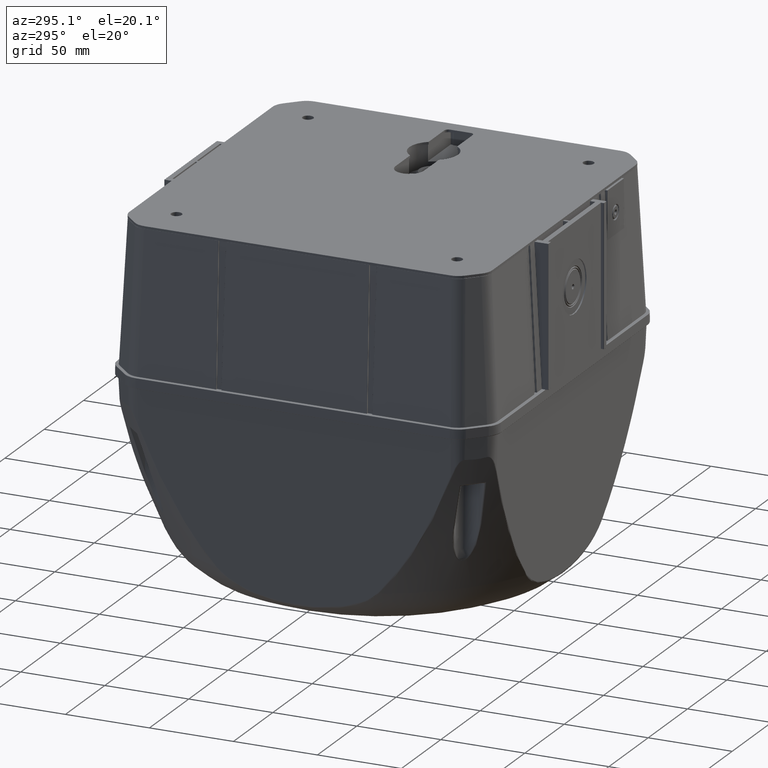
[diagram: clean part render]
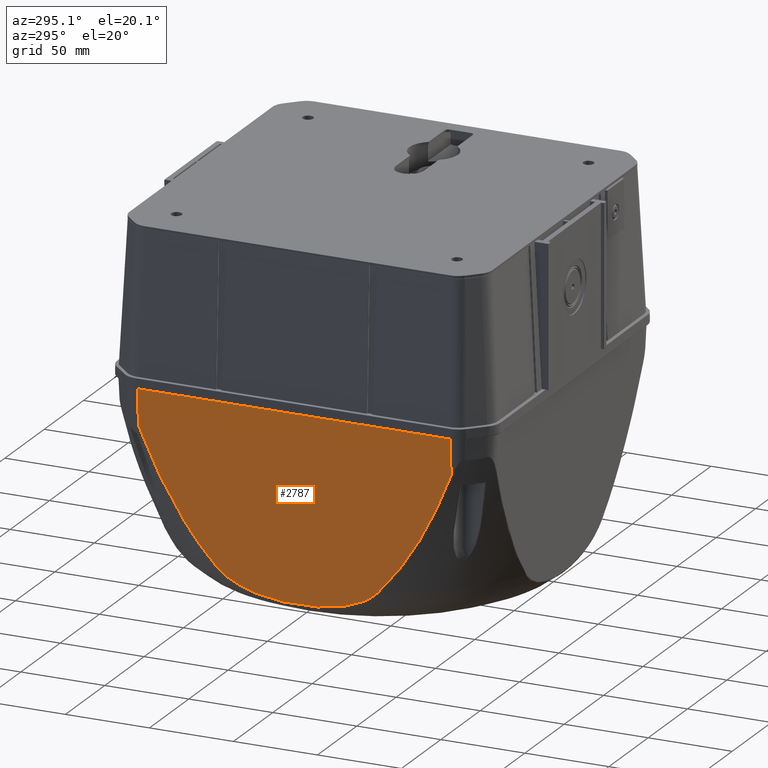
[diagram: same view with one face highlighted and labeled with its STEP entity id]
A machine part, auxiliary view. The second image highlights one B-rep face of the part: STEP entity #2787.
In plain terms, the highlighted planar face has unit normal (-0.999, 0, -0.0436).
Its self-contained STEP definition (entity closure, byte-faithful):
#1468=FACE_OUTER_BOUND('',#4855,.T.);
#2787=ADVANCED_FACE('',(#1468),#4229,.T.);
#4229=PLANE('',#21496);
#4855=EDGE_LOOP('',(#9309,#9310,#9311,#9312,#9313,#9314));
#6463=LINE('',#31028,#7690);
#6464=LINE('',#31031,#7691);
#6465=LINE('',#31033,#7692);
#7690=VECTOR('',#24229,1.);
#7691=VECTOR('',#24230,1.);
#7692=VECTOR('',#24231,1.);
#8903=B_SPLINE_CURVE_WITH_KNOTS('',3,(#31035,#31036,#31037,#31038,#31039,
#31040,#31041,#31042,#31043,#31044,#31045,#31046,#31047,#31048,#31049,#31050),
 .UNSPECIFIED.,.F.,.F.,(4,2,2,2,2,2,2,4),(0.,0.250000000000002,0.500000000000003,
0.625000000000003,0.750000000000003,0.812500000000003,0.875000000000002,
1.),.UNSPECIFIED.);
#8904=B_SPLINE_CURVE_WITH_KNOTS('',3,(#31052,#31053,#31054,#31055,#31056,
#31057,#31058,#31059,#31060,#31061,#31062,#31063,#31064,#31065,#31066,#31067,
#31068,#31069,#31070,#31071,#31072,#31073,#31074,#31075,#31076,#31077,#31078,
#31079,#31080,#31081,#31082,#31083,#31084,#31085,#31086,#31087,#31088,#31089,
#31090,#31091),.UNSPECIFIED.,.F.,.F.,(4,2,2,2,2,2,2,2,2,2,2,2,2,2,2,2,2,
2,2,4),(0.,0.0625000000000023,0.125000000000005,0.156250000000006,0.187500000000007,
0.250000000000008,0.312500000000007,0.343750000000006,0.375000000000006,
0.437500000000005,0.500000000000005,0.562500000000004,0.625000000000003,
0.687500000000003,0.750000000000002,0.812500000000001,0.875000000000001,
0.90625,0.9375,1.),.UNSPECIFIED.);
#8905=B_SPLINE_CURVE_WITH_KNOTS('',3,(#31093,#31094,#31095,#31096,#31097,
#31098,#31099,#31100,#31101,#31102,#31103,#31104,#31105,#31106,#31107,#31108),
 .UNSPECIFIED.,.F.,.F.,(4,2,2,2,2,2,2,4),(0.,0.125,0.25,0.375,0.5,0.625,
0.75,1.),.UNSPECIFIED.);
#9309=ORIENTED_EDGE('',*,*,#17258,.T.);
#9310=ORIENTED_EDGE('',*,*,#17259,.T.);
#9311=ORIENTED_EDGE('',*,*,#17260,.T.);
#9312=ORIENTED_EDGE('',*,*,#17261,.T.);
#9313=ORIENTED_EDGE('',*,*,#17262,.T.);
#9314=ORIENTED_EDGE('',*,*,#17263,.T.);
#15467=VERTEX_POINT('',#31029);
#15468=VERTEX_POINT('',#31030);
#15469=VERTEX_POINT('',#31032);
#15470=VERTEX_POINT('',#31034);
#15471=VERTEX_POINT('',#31051);
#15472=VERTEX_POINT('',#31092);
#17258=EDGE_CURVE('',#15467,#15468,#6463,.T.);
#17259=EDGE_CURVE('',#15468,#15469,#6464,.T.);
#17260=EDGE_CURVE('',#15469,#15470,#6465,.T.);
#17261=EDGE_CURVE('',#15470,#15471,#8903,.T.);
#17262=EDGE_CURVE('',#15471,#15472,#8904,.T.);
#17263=EDGE_CURVE('',#15472,#15467,#8905,.T.);
#21496=AXIS2_PLACEMENT_3D('',#31109,#24232,#24233);
#24229=DIRECTION('',(0.0180647935043676,0.0436122694797137,-0.998885195198364));
#24230=DIRECTION('',(-1.,0.,0.));
#24231=DIRECTION('',(0.0180647935043676,-0.0436122694797137,0.998885195198364));
#24232=DIRECTION('',(0.,0.999048221581858,0.043619387365336));
#24233=DIRECTION('',(0.,-0.043619387365336,0.999048221581858));
#31028=CARTESIAN_POINT('',(-135.036842783851,112.503260261641,89.1253277317557));
#31029=CARTESIAN_POINT('',(-135.452721086798,111.49924122237,112.121144413379));
#31030=CARTESIAN_POINT('',(-135.027617796032,112.546923152946,88.1251932025113));
#31031=CARTESIAN_POINT('',(-228.4,112.546929202835,88.1251445408933));
#31032=CARTESIAN_POINT('',(-321.772382109689,112.54692292548,88.1251984123266));
#31033=CARTESIAN_POINT('',(-321.539147723489,111.962453506361,101.51183886169));
#31034=CARTESIAN_POINT('',(-321.347278913202,111.49924122237,112.121144413379));
#31035=CARTESIAN_POINT('',(-321.347278913202,111.49924122237,112.121144413379));
#31036=CARTESIAN_POINT('',(-318.659399345371,111.199000147905,118.997795590927));
#31037=CARTESIAN_POINT('',(-315.756987159626,110.90398885532,125.754665070424));
#31038=CARTESIAN_POINT('',(-309.472955443789,110.325648176197,139.000844392184));
#31039=CARTESIAN_POINT('',(-306.092300042992,110.042295286538,145.490692544403));
#31040=CARTESIAN_POINT('',(-300.592352654686,109.627723054927,154.985957740127));
#31041=CARTESIAN_POINT('',(-298.687130937553,109.491285201999,158.110898335516));
#31042=CARTESIAN_POINT('',(-294.713439350731,109.222389087865,164.269631890532));
#31043=CARTESIAN_POINT('',(-292.645104568955,109.089927533544,167.303500274864));
#31044=CARTESIAN_POINT('',(-289.399247745086,108.894729838752,171.774262511988));
#31045=CARTESIAN_POINT('',(-288.293323995327,108.830248306574,173.251132407195));
#31046=CARTESIAN_POINT('',(-286.028777736935,108.702569909402,176.175448481606));
#31047=CARTESIAN_POINT('',(-284.86889418166,108.639306510832,177.624418530258));
#31048=CARTESIAN_POINT('',(-281.310540597409,108.452139014911,181.911258975125));
#31049=CARTESIAN_POINT('',(-278.840433549818,108.33115470018,184.682255354757));
#31050=CARTESIAN_POINT('',(-276.250399450777,108.214819399235,187.346771812602));
#31051=CARTESIAN_POINT('',(-276.250399450777,108.214819399235,187.346771812602));
#31052=CARTESIAN_POINT('',(-276.250399450777,108.214819399235,187.346771812602));
#31053=CARTESIAN_POINT('',(-274.73728903646,108.146855755252,188.903395180218));
#31054=CARTESIAN_POINT('',(-273.082538720935,108.088096355642,190.249206692653));
#31055=CARTESIAN_POINT('',(-269.575814533309,107.983393816497,192.647289101548));
#31056=CARTESIAN_POINT('',(-267.722447476967,107.937541210831,193.697486431506));
#31057=CARTESIAN_POINT('',(-264.825190863202,107.876378750283,195.098337088271));
#31058=CARTESIAN_POINT('',(-263.837751966743,107.857248089191,195.536501264701));
#31059=CARTESIAN_POINT('',(-261.853383865462,107.821747852733,196.349590357445));
#31060=CARTESIAN_POINT('',(-260.853376491378,107.805307572217,196.726134687937));
#31061=CARTESIAN_POINT('',(-257.832928485737,107.75940658063,197.777440237679));
#31062=CARTESIAN_POINT('',(-255.7922109871,107.733340770127,198.374445450271));
#31063=CARTESIAN_POINT('',(-251.667705567194,107.688420312545,199.403293079061));
#31064=CARTESIAN_POINT('',(-249.583846989083,107.669577495348,199.834864546411));
#31065=CARTESIAN_POINT('',(-246.430854977367,107.645867985299,200.377901605842));
#31066=CARTESIAN_POINT('',(-245.375297817331,107.638728253981,200.541428338038));
#31067=CARTESIAN_POINT('',(-243.255662743428,107.625875397925,200.83580713977));
#31068=CARTESIAN_POINT('',(-242.190491854923,107.620158951289,200.966735293285));
#31069=CARTESIAN_POINT('',(-239.001515502386,107.605114318098,201.311314044664));
#31070=CARTESIAN_POINT('',(-236.878694152298,107.597838125312,201.477966258304));
#31071=CARTESIAN_POINT('',(-232.638695886814,107.588199704369,201.698722391843));
#31072=CARTESIAN_POINT('',(-230.521521765029,107.585839908289,201.752770608008));
#31073=CARTESIAN_POINT('',(-226.292582588802,107.585829373285,201.75301189926));
#31074=CARTESIAN_POINT('',(-224.180818046844,107.588179080524,201.69919475556));
#31075=CARTESIAN_POINT('',(-219.962850501105,107.597720291099,201.48066510549));
#31076=CARTESIAN_POINT('',(-217.856645978039,107.604910471768,201.315982893211));
#31077=CARTESIAN_POINT('',(-213.650353784265,107.624616077838,200.86465031178));
#31078=CARTESIAN_POINT('',(-211.55026159016,107.637127565235,200.578090137795));
#31079=CARTESIAN_POINT('',(-207.357237543288,107.668384231436,199.862194783286));
#31080=CARTESIAN_POINT('',(-205.264294931129,107.687120043268,199.433074141736));
#31081=CARTESIAN_POINT('',(-201.087314524816,107.732344074934,198.397273523296));
#31082=CARTESIAN_POINT('',(-199.029358376775,107.758555125415,197.796941768303));
#31083=CARTESIAN_POINT('',(-194.990922061397,107.819738659974,196.395608437342));
#31084=CARTESIAN_POINT('',(-193.009835166599,107.854693881259,195.595002244336));
#31085=CARTESIAN_POINT('',(-190.112399167185,107.915616953941,194.199634471144));
#31086=CARTESIAN_POINT('',(-189.157142385065,107.937396548696,193.700799739134));
#31087=CARTESIAN_POINT('',(-187.284244509745,107.984092818594,192.63127932141));
#31088=CARTESIAN_POINT('',(-186.372270341744,108.008861736435,192.063977834275));
#31089=CARTESIAN_POINT('',(-183.719242599742,108.087980607149,190.251857768996));
#31090=CARTESIAN_POINT('',(-182.059007064187,108.147022121496,188.89958476676));
#31091=CARTESIAN_POINT('',(-180.549600549223,108.214819399235,187.346771812603));
#31092=CARTESIAN_POINT('',(-180.549600549223,108.214819399235,187.346771812603));
#31093=CARTESIAN_POINT('',(-180.549600549223,108.214819399235,187.346771812603));
#31094=CARTESIAN_POINT('',(-177.960481925194,108.331113580234,184.683197156349));
#31095=CARTESIAN_POINT('',(-175.505543412759,108.45139334092,181.928337717383));
#31096=CARTESIAN_POINT('',(-170.808276658792,108.698268069268,176.273976819475));
#31097=CARTESIAN_POINT('',(-168.566336607575,108.824874567427,173.374211268722));
#31098=CARTESIAN_POINT('',(-164.260176867563,109.083366428534,167.453774285751));
#31099=CARTESIAN_POINT('',(-162.19615103626,109.215257549671,164.432970969315));
#31100=CARTESIAN_POINT('',(-158.22220726192,109.483617290515,158.286522382391));
#31101=CARTESIAN_POINT('',(-156.312395284165,109.620089057731,155.160805022101));
#31102=CARTESIAN_POINT('',(-152.630382697325,109.897120091189,148.815751182123));
#31103=CARTESIAN_POINT('',(-150.8582440564,110.037681198085,145.59637254455));
#31104=CARTESIAN_POINT('',(-147.439820772044,110.322541679269,139.071994869492));
#31105=CARTESIAN_POINT('',(-145.792807743348,110.466928951207,135.764982644863));
#31106=CARTESIAN_POINT('',(-141.048723356638,110.90330572932,125.770311228189));
#31107=CARTESIAN_POINT('',(-138.139496096683,111.199123529052,118.994969698059));
#31108=CARTESIAN_POINT('',(-135.452721086798,111.49924122237,112.121144413379));
#31109=CARTESIAN_POINT('',(-228.4,112.5,89.2));